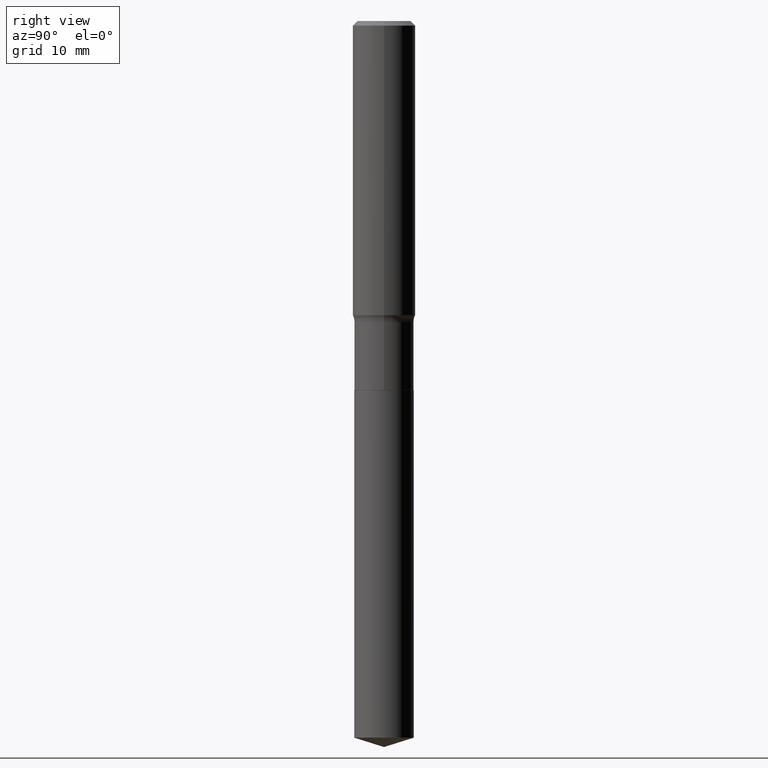
[diagram: clean part render]
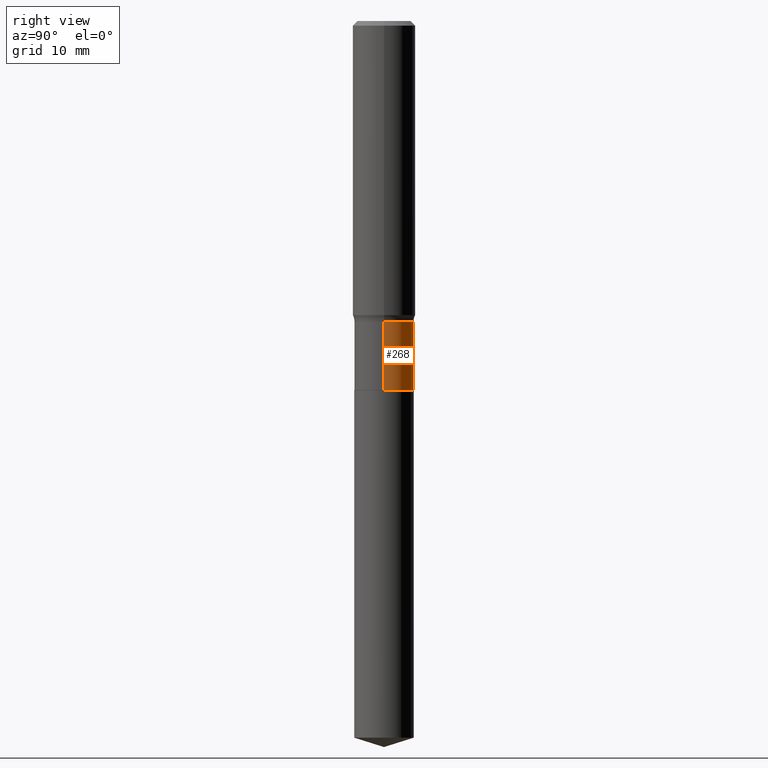
[diagram: same view with one face highlighted and labeled with its STEP entity id]
A machine part, right view. The second image highlights one B-rep face of the part: STEP entity #268.
In plain terms, the highlighted cylindrical surface (edge-blend (fillet) strip) has radius 3.7706 mm, axis along (-0, 0, 1).
Its self-contained STEP definition (entity closure, byte-faithful):
#1 = CARTESIAN_POINT ( 'NONE',  ( 0.1484499999999999431, -6.282222372980468867E-15, -1.502400000000000402 ) ) ;
#28 = FACE_OUTER_BOUND ( 'NONE', #149, .T. ) ;
#57 = VECTOR ( 'NONE', #229, 39.37007874015748143 ) ;
#77 = CIRCLE ( 'NONE', #482, 0.1484499999999999986 ) ;
#85 = VERTEX_POINT ( 'NONE', #1 ) ;
#104 = AXIS2_PLACEMENT_3D ( 'NONE', #260, #107, #411 ) ;
#107 = DIRECTION ( 'NONE',  ( -2.445468806185136597E-29, 3.491481338843145583E-15, 1.000000000000000000 ) ) ;
#122 = ORIENTED_EDGE ( 'NONE', *, *, #390, .T. ) ;
#142 = CARTESIAN_POINT ( 'NONE',  ( -0.1484499999999999709, 1.054800691235868519E-15, -7.302159141483407353E-30 ) ) ;
#149 = EDGE_LOOP ( 'NONE', ( #262, #122, #376, #218 ) ) ;
#178 = CIRCLE ( 'NONE', #458, 0.1484499999999999431 ) ;
#188 = VECTOR ( 'NONE', #278, 39.37007874015748143 ) ;
#200 = VERTEX_POINT ( 'NONE', #329 ) ;
#213 = EDGE_CURVE ( 'NONE', #450, #85, #480, .T. ) ;
#218 = ORIENTED_EDGE ( 'NONE', *, *, #213, .F. ) ;
#229 = DIRECTION ( 'NONE',  ( -2.445468806185136877E-29, 3.491481338843145188E-15, 1.000000000000000000 ) ) ;
#234 = EDGE_CURVE ( 'NONE', #450, #200, #77, .T. ) ;
#247 = CARTESIAN_POINT ( 'NONE',  ( 4.507732650441062752E-29, -6.435847551889571436E-15, -1.843300000000000161 ) ) ;
#255 = DIRECTION ( 'NONE',  ( 1.000000000000000000, -6.982962677686264344E-15, 0.000000000000000000 ) ) ;
#257 = CYLINDRICAL_SURFACE ( 'NONE', #104, 0.1484499999999999709 ) ;
#260 = CARTESIAN_POINT ( 'NONE',  ( 0.000000000000000000, 0.000000000000000000, 0.000000000000000000 ) ) ;
#262 = ORIENTED_EDGE ( 'NONE', *, *, #234, .T. ) ;
#268 = ADVANCED_FACE ( 'NONE', ( #28 ), #257, .T. ) ;
#273 = CARTESIAN_POINT ( 'NONE',  ( 0.1484499999999999986, -7.472468361392097332E-15, -1.843300000000000161 ) ) ;
#278 = DIRECTION ( 'NONE',  ( -2.445468806185136877E-29, 3.491481338843145188E-15, 1.000000000000000000 ) ) ;
#280 = CARTESIAN_POINT ( 'NONE',  ( 0.1484499999999999709, -1.036620809502526093E-15, 7.238684423669065009E-30 ) ) ;
#285 = DIRECTION ( 'NONE',  ( -2.445468806185136597E-29, 3.491481338843145583E-15, 1.000000000000000000 ) ) ;
#329 = CARTESIAN_POINT ( 'NONE',  ( -0.1484499999999999986, -4.785923866447888291E-15, -1.843300000000000161 ) ) ;
#346 = EDGE_CURVE ( 'NONE', #85, #448, #178, .T. ) ;
#376 = ORIENTED_EDGE ( 'NONE', *, *, #346, .F. ) ;
#390 = EDGE_CURVE ( 'NONE', #200, #448, #481, .T. ) ;
#411 = DIRECTION ( 'NONE',  ( 1.000000000000000000, -6.982962677686266711E-15, 4.876176775795935793E-29 ) ) ;
#439 = DIRECTION ( 'NONE',  ( 1.000000000000000000, -6.982962677686268288E-15, 0.000000000000000000 ) ) ;
#447 = CARTESIAN_POINT ( 'NONE',  ( 3.674072334412550118E-29, -5.245601563477943760E-15, -1.502400000000000402 ) ) ;
#448 = VERTEX_POINT ( 'NONE', #466 ) ;
#450 = VERTEX_POINT ( 'NONE', #273 ) ;
#458 = AXIS2_PLACEMENT_3D ( 'NONE', #447, #485, #255 ) ;
#466 = CARTESIAN_POINT ( 'NONE',  ( -0.1484499999999999431, -4.785923866447888291E-15, -1.502400000000000402 ) ) ;
#480 = LINE ( 'NONE', #280, #188 ) ;
#481 = LINE ( 'NONE', #142, #57 ) ;
#482 = AXIS2_PLACEMENT_3D ( 'NONE', #247, #285, #439 ) ;
#485 = DIRECTION ( 'NONE',  ( -2.445468806185136597E-29, 3.491481338843145583E-15, 1.000000000000000000 ) ) ;